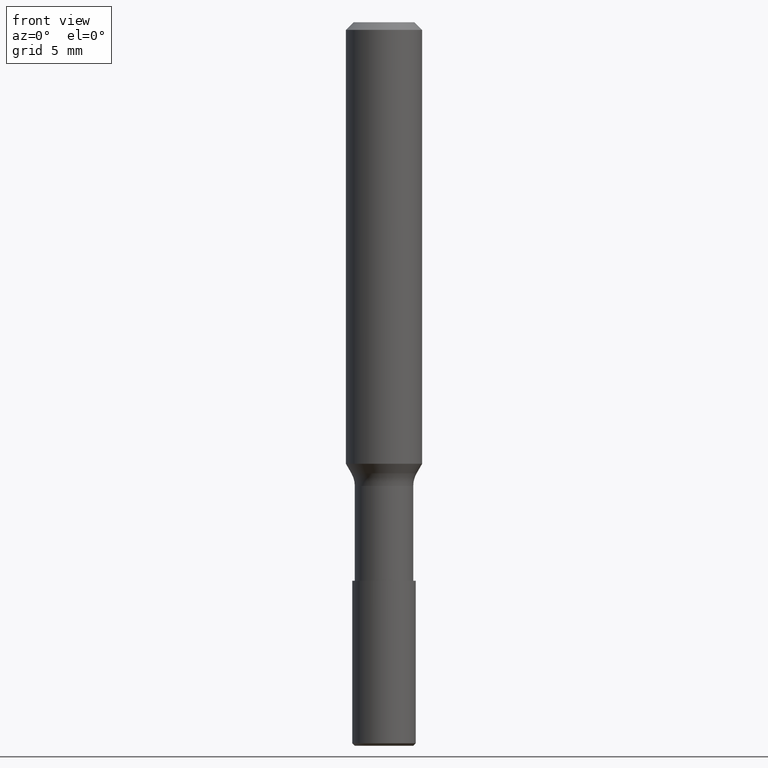
[diagram: clean part render]
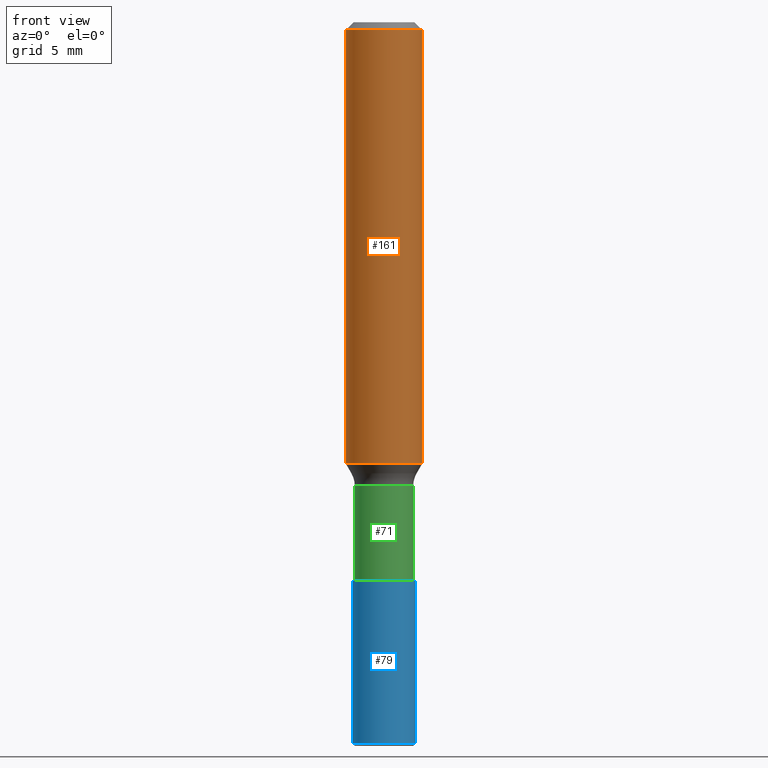
[diagram: same view with three faces highlighted in distinct colors, each labeled with its STEP entity id]
A machine part, front view with three faces highlighted in distinct colors.
Their STEP definitions:

[orange] entity #161 — the highlighted cylindrical surface (bore or boss wall) has radius 3 mm, axis along (0, 0, 1).
#1 = DIRECTION ( 'NONE',  ( 6.982962677686266711E-15, 0.0000000000000000000, 1.000000000000000000 ) ) ;
#2 = EDGE_LOOP ( 'NONE', ( #88 ) ) ;
#16 = VERTEX_POINT ( 'NONE', #64 ) ;
#59 = FACE_OUTER_BOUND ( 'NONE', #2, .T. ) ;
#64 = CARTESIAN_POINT ( 'NONE',  ( 2.999999999999995559, 0.0000000000000000000, -0.6000000000000241807 ) ) ;
#73 = EDGE_LOOP ( 'NONE', ( #160 ) ) ;
#88 = ORIENTED_EDGE ( 'NONE', *, *, #235, .F. ) ;
#91 = AXIS2_PLACEMENT_3D ( 'NONE', #101, #1, #243 ) ;
#101 = CARTESIAN_POINT ( 'NONE',  ( -3.980288726281171773E-13, 0.0000000000000000000, -56.99999999999999289 ) ) ;
#126 = CIRCLE ( 'NONE', #135, 3.000000000000000000 ) ;
#130 = DIRECTION ( 'NONE',  ( 6.982962677686266711E-15, 0.0000000000000000000, 1.000000000000000000 ) ) ;
#135 = AXIS2_PLACEMENT_3D ( 'NONE', #253, #130, #173 ) ;
#140 = DIRECTION ( 'NONE',  ( 6.982962677686266711E-15, 0.0000000000000000000, 1.000000000000000000 ) ) ;
#160 = ORIENTED_EDGE ( 'NONE', *, *, #271, .T. ) ;
#161 = ADVANCED_FACE ( 'NONE', ( #59, #174 ), #176, .T. ) ;
#173 = DIRECTION ( 'NONE',  ( 1.000000000000000000, 0.0000000000000000000, -6.975033976323412122E-15 ) ) ;
#174 = FACE_OUTER_BOUND ( 'NONE', #73, .T. ) ;
#176 = CYLINDRICAL_SURFACE ( 'NONE', #91, 3.000000000000017319 ) ;
#186 = CIRCLE ( 'NONE', #239, 3.000000000000017319 ) ;
#191 = DIRECTION ( 'NONE',  ( 1.000000000000000000, 0.0000000000000000000, -6.938893903907188146E-15 ) ) ;
#200 = CARTESIAN_POINT ( 'NONE',  ( -2.429202640951285895E-13, 0.0000000000000000000, -34.78756443470176407 ) ) ;
#204 = CARTESIAN_POINT ( 'NONE',  ( 2.999999999999774403, 0.0000000000000000000, -34.78756443470178539 ) ) ;
#235 = EDGE_CURVE ( 'NONE', #16, #16, #126, .T. ) ;
#239 = AXIS2_PLACEMENT_3D ( 'NONE', #200, #140, #191 ) ;
#243 = DIRECTION ( 'NONE',  ( 1.000000000000000000, 0.0000000000000000000, -6.938893903907188146E-15 ) ) ;
#253 = CARTESIAN_POINT ( 'NONE',  ( -4.189777606611783692E-15, 0.0000000000000000000, -0.6000000000000033085 ) ) ;
#271 = EDGE_CURVE ( 'NONE', #280, #280, #186, .T. ) ;
#280 = VERTEX_POINT ( 'NONE', #204 ) ;

[blue] entity #79 — the highlighted cylindrical surface (bore or boss wall) has radius 2.5 mm, axis along (0, -0, 1).
#10 = CIRCLE ( 'NONE', #213, 2.500000000000015987 ) ;
#26 = DIRECTION ( 'NONE',  ( -1.000000000000000000, 0.0000000000000000000, 8.326672684688590434E-15 ) ) ;
#45 = EDGE_CURVE ( 'NONE', #155, #155, #10, .T. ) ;
#54 = VERTEX_POINT ( 'NONE', #144 ) ;
#62 = CARTESIAN_POINT ( 'NONE',  ( -4.219140501844019865E-13, 0.0000000000000000000, -56.79999999999998295 ) ) ;
#66 = EDGE_CURVE ( 'NONE', #54, #54, #105, .T. ) ;
#72 = CARTESIAN_POINT ( 'NONE',  ( -3.278450613974943489E-13, 0.0000000000000000000, -44.00000000000000000 ) ) ;
#79 = ADVANCED_FACE ( 'NONE', ( #260, #156 ), #162, .T. ) ;
#84 = CARTESIAN_POINT ( 'NONE',  ( 6.056509442254067229E-14, 0.0000000000000000000, 8.673266236417621400 ) ) ;
#105 = CIRCLE ( 'NONE', #252, 2.500000000000025313 ) ;
#109 = DIRECTION ( 'NONE',  ( 7.373952358995601206E-15, -0.0000000000000000000, 1.000000000000000000 ) ) ;
#123 = CARTESIAN_POINT ( 'NONE',  ( 2.499999999999688249, 0.0000000000000000000, -44.00000000000002132 ) ) ;
#143 = EDGE_LOOP ( 'NONE', ( #205 ) ) ;
#144 = CARTESIAN_POINT ( 'NONE',  ( -2.500000000000447198, 0.0000000000000000000, -56.79999999999996163 ) ) ;
#155 = VERTEX_POINT ( 'NONE', #123 ) ;
#156 = FACE_OUTER_BOUND ( 'NONE', #143, .T. ) ;
#162 = CYLINDRICAL_SURFACE ( 'NONE', #244, 2.500000000000015987 ) ;
#171 = EDGE_LOOP ( 'NONE', ( #231 ) ) ;
#205 = ORIENTED_EDGE ( 'NONE', *, *, #66, .F. ) ;
#213 = AXIS2_PLACEMENT_3D ( 'NONE', #72, #270, #247 ) ;
#231 = ORIENTED_EDGE ( 'NONE', *, *, #45, .F. ) ;
#241 = DIRECTION ( 'NONE',  ( 1.000000000000000000, 0.0000000000000000000, -7.632783294297902306E-15 ) ) ;
#244 = AXIS2_PLACEMENT_3D ( 'NONE', #84, #109, #241 ) ;
#247 = DIRECTION ( 'NONE',  ( 1.000000000000000000, 0.0000000000000000000, -8.326672684688620411E-15 ) ) ;
#250 = DIRECTION ( 'NONE',  ( -8.961959400175080870E-15, 0.0000000000000000000, -1.000000000000000000 ) ) ;
#252 = AXIS2_PLACEMENT_3D ( 'NONE', #62, #250, #26 ) ;
#260 = FACE_OUTER_BOUND ( 'NONE', #171, .T. ) ;
#270 = DIRECTION ( 'NONE',  ( 6.982962677686266711E-15, 0.0000000000000000000, 1.000000000000000000 ) ) ;

[green] entity #71 — the highlighted cylindrical surface (bore or boss wall) has radius 2.3 mm, axis along (-0, 0, -1).
#9 = FACE_OUTER_BOUND ( 'NONE', #209, .T. ) ;
#22 = CIRCLE ( 'NONE', #56, 2.299999999999999822 ) ;
#29 = CARTESIAN_POINT ( 'NONE',  ( -3.072503578181957353E-13, 0.0000000000000000000, -44.00000000000000000 ) ) ;
#33 = DIRECTION ( 'NONE',  ( -1.000000000000000000, 0.0000000000000000000, 6.033820786006285717E-15 ) ) ;
#40 = DIRECTION ( 'NONE',  ( -1.000000000000000000, 0.0000000000000000000, 6.982962677686267499E-15 ) ) ;
#51 = AXIS2_PLACEMENT_3D ( 'NONE', #29, #207, #177 ) ;
#56 = AXIS2_PLACEMENT_3D ( 'NONE', #102, #188, #33 ) ;
#71 = ADVANCED_FACE ( 'NONE', ( #263, #9 ), #182, .T. ) ;
#96 = CARTESIAN_POINT ( 'NONE',  ( -2.300000000000307132, 0.0000000000000000000, -43.99999999999998579 ) ) ;
#102 = CARTESIAN_POINT ( 'NONE',  ( -2.551288148172312397E-13, 0.0000000000000000000, -36.53589838486227848 ) ) ;
#104 = VERTEX_POINT ( 'NONE', #96 ) ;
#108 = EDGE_CURVE ( 'NONE', #132, #132, #22, .T. ) ;
#112 = EDGE_CURVE ( 'NONE', #104, #104, #118, .T. ) ;
#118 = CIRCLE ( 'NONE', #51, 2.299999999999999822 ) ;
#132 = VERTEX_POINT ( 'NONE', #190 ) ;
#177 = DIRECTION ( 'NONE',  ( -1.000000000000000000, 0.0000000000000000000, 6.033820786006285717E-15 ) ) ;
#182 = CYLINDRICAL_SURFACE ( 'NONE', #202, 2.299999999999999822 ) ;
#188 = DIRECTION ( 'NONE',  ( -6.982962677686266711E-15, 0.0000000000000000000, -1.000000000000000000 ) ) ;
#190 = CARTESIAN_POINT ( 'NONE',  ( -2.300000000000255174, 0.0000000000000000000, -36.53589838486226427 ) ) ;
#201 = ORIENTED_EDGE ( 'NONE', *, *, #108, .T. ) ;
#202 = AXIS2_PLACEMENT_3D ( 'NONE', #208, #273, #40 ) ;
#207 = DIRECTION ( 'NONE',  ( -6.982962677686266711E-15, 0.0000000000000000000, -1.000000000000000000 ) ) ;
#208 = CARTESIAN_POINT ( 'NONE',  ( 0.0000000000000000000, 0.0000000000000000000, 0.0000000000000000000 ) ) ;
#209 = EDGE_LOOP ( 'NONE', ( #217 ) ) ;
#210 = EDGE_LOOP ( 'NONE', ( #201 ) ) ;
#217 = ORIENTED_EDGE ( 'NONE', *, *, #112, .F. ) ;
#263 = FACE_OUTER_BOUND ( 'NONE', #210, .T. ) ;
#273 = DIRECTION ( 'NONE',  ( -6.982962677686266711E-15, 0.0000000000000000000, -1.000000000000000000 ) ) ;